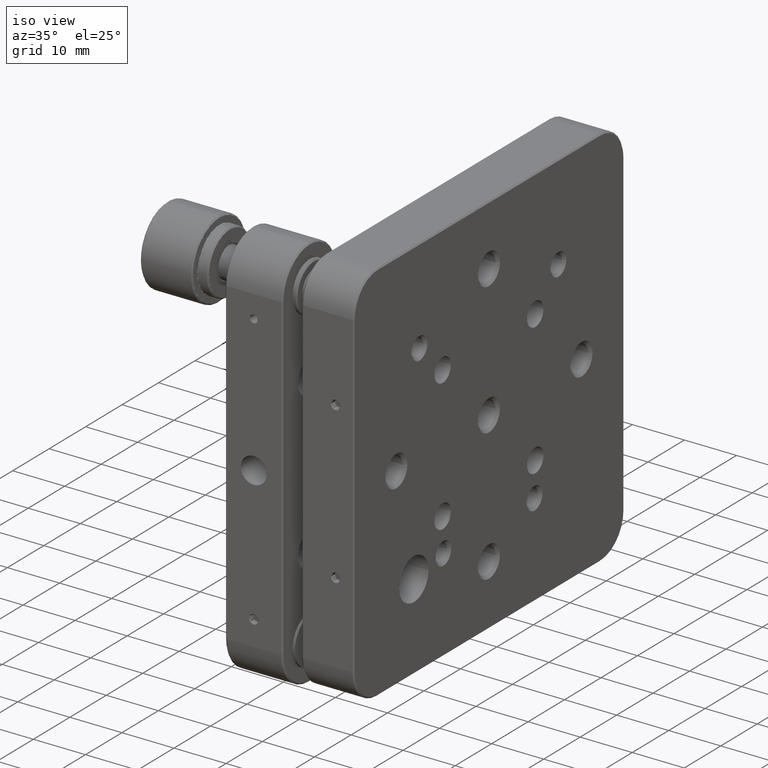
[diagram: clean part render]
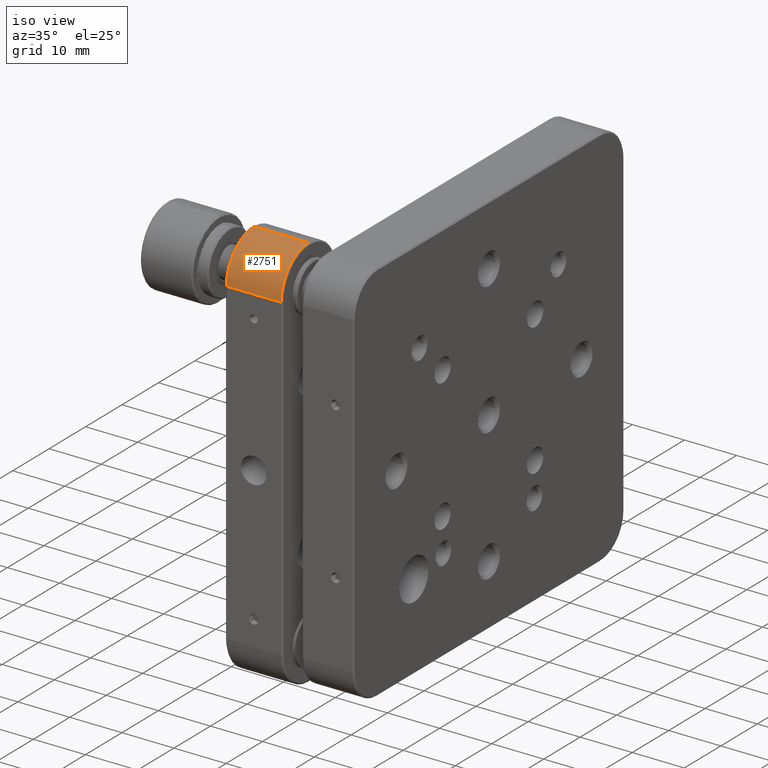
[diagram: same view with one face highlighted and labeled with its STEP entity id]
A machine part, iso view. The second image highlights one B-rep face of the part: STEP entity #2751.
In plain terms, the highlighted face is a freeform B-spline surface patch.
Its self-contained STEP definition (entity closure, byte-faithful):
#1660 = EDGE_CURVE ( 'NONE', #37291, #30365, #39007, .T. ) ;
#2751 = ADVANCED_FACE ( 'NONE', ( #37640 ), #30173, .T. ) ;
#2875 = CARTESIAN_POINT ( 'NONE',  ( 6.301200000000001467, -38.10000000000000142, 38.10000000000000142 ) ) ;
#3924 = ORIENTED_EDGE ( 'NONE', *, *, #1660, .T. ) ;
#4776 = LINE ( 'NONE', #30212, #7857 ) ;
#4958 = VECTOR ( 'NONE', #7834, 1000.000000000000000 ) ;
#6607 = CARTESIAN_POINT ( 'NONE',  ( -5.249999999999995559, -30.60000000000000853, 38.10000000000000142 ) ) ;
#7834 = DIRECTION ( 'NONE',  ( 1.000000000000000000, 0.000000000000000000, 0.000000000000000000 ) ) ;
#7857 = VECTOR ( 'NONE', #9081, 1000.000000000000000 ) ;
#8194 = DIRECTION ( 'NONE',  ( -1.000000000000000000, -0.000000000000000000, -0.000000000000000000 ) ) ;
#8422 = CARTESIAN_POINT ( 'NONE',  ( -6.301199999999997914, -23.10000000000000142, 30.60000000000000142 ) ) ;
#8650 = CARTESIAN_POINT ( 'NONE',  ( -6.301199999999997914, -30.60000000000000142, 23.10000000000000142 ) ) ;
#8887 = CARTESIAN_POINT ( 'NONE',  ( -6.301199999999997026, -38.10000000000000142, 23.10000000000000142 ) ) ;
#9081 = DIRECTION ( 'NONE',  ( 1.000000000000000000, 0.000000000000000000, 0.000000000000000000 ) ) ;
#9432 = ORIENTED_EDGE ( 'NONE', *, *, #36376, .T. ) ;
#10064 = CARTESIAN_POINT ( 'NONE',  ( -6.301199999999997914, -30.60000000000000142, 38.10000000000000142 ) ) ;
#10515 = CARTESIAN_POINT ( 'NONE',  ( 6.301200000000001467, -38.10000000000000142, 30.60000000000000142 ) ) ;
#10607 = AXIS2_PLACEMENT_3D ( 'NONE', #19455, #8194, #12263 ) ;
#12263 = DIRECTION ( 'NONE',  ( 0.000000000000000000, 4.625929269271482956E-16, -1.000000000000000000 ) ) ;
#13154 = CARTESIAN_POINT ( 'NONE',  ( 5.250000000000000000, -38.10000000000000142, 30.60000000000000142 ) ) ;
#14021 = EDGE_CURVE ( 'NONE', #23347, #21538, #4776, .T. ) ;
#14285 = CIRCLE ( 'NONE', #14392, 7.500000000000003553 ) ;
#14392 = AXIS2_PLACEMENT_3D ( 'NONE', #24134, #16453, #46149 ) ;
#15838 = CARTESIAN_POINT ( 'NONE',  ( 6.301200000000001467, -23.10000000000000142, 30.60000000000000142 ) ) ;
#16453 = DIRECTION ( 'NONE',  ( -1.000000000000000000, 0.000000000000000000, 0.000000000000000000 ) ) ;
#17025 = CARTESIAN_POINT ( 'NONE',  ( -6.301199999999997914, -23.10000000000000142, 30.60000000000000142 ) ) ;
#19455 = CARTESIAN_POINT ( 'NONE',  ( -5.249999999999995559, -30.60000000000000497, 30.60000000000000497 ) ) ;
#20848 = CARTESIAN_POINT ( 'NONE',  ( -6.301199999999997914, -38.10000000000000142, 30.60000000000000142 ) ) ;
#20930 = ORIENTED_EDGE ( 'NONE', *, *, #21459, .F. ) ;
#21459 = EDGE_CURVE ( 'NONE', #37291, #23347, #22883, .T. ) ;
#21538 = VERTEX_POINT ( 'NONE', #37425 ) ;
#22082 = EDGE_LOOP ( 'NONE', ( #3924, #9432, #37651, #20930 ) ) ;
#22883 = CIRCLE ( 'NONE', #10607, 7.500000000000003553 ) ;
#23347 = VERTEX_POINT ( 'NONE', #6607 ) ;
#23431 = CARTESIAN_POINT ( 'NONE',  ( -5.249999999999995559, -38.10000000000000142, 30.60000000000000142 ) ) ;
#24134 = CARTESIAN_POINT ( 'NONE',  ( 5.250000000000000000, -30.60000000000000497, 30.60000000000000497 ) ) ;
#24931 = CARTESIAN_POINT ( 'NONE',  ( 6.301200000000001467, -23.10000000000000142, 30.60000000000000142 ) ) ;
#27839 = CARTESIAN_POINT ( 'NONE',  ( 6.301200000000001467, -23.10000000000000142, 38.10000000000000142 ) ) ;
#28535 = CARTESIAN_POINT ( 'NONE',  ( -6.301199999999997026, -23.10000000000000142, 38.10000000000000142 ) ) ;
#30173 =( BOUNDED_SURFACE ( )  B_SPLINE_SURFACE ( 2, 1, ( 
 ( #15838, #8422 ),
 ( #41463, #30490 ),
 ( #45052, #8650 ),
 ( #41697, #8887 ),
 ( #10515, #20848 ),
 ( #2875, #42415 ),
 ( #31900, #10064 ),
 ( #27839, #28535 ),
 ( #24931, #17025 ) ),
 .UNSPECIFIED., .F., .F., .F. ) 
 B_SPLINE_SURFACE_WITH_KNOTS ( ( 3, 2, 2, 2, 3 ),
 ( 2, 2 ),
 ( 0.000000000000000000, 1.570796326794896558, 3.141592653589793116, 4.712388980384689674, 6.283185307179586232 ),
 ( 0.000000000000000000, 12.60239999999999938 ),
 .UNSPECIFIED. ) 
 GEOMETRIC_REPRESENTATION_ITEM ( )  RATIONAL_B_SPLINE_SURFACE ( (
 ( 1.000000000000000000, 1.000000000000000000),
 ( 0.7071067811865475727, 0.7071067811865475727),
 ( 1.000000000000000000, 1.000000000000000000),
 ( 0.7071067811865475727, 0.7071067811865475727),
 ( 1.000000000000000000, 1.000000000000000000),
 ( 0.7071067811865475727, 0.7071067811865475727),
 ( 1.000000000000000000, 1.000000000000000000),
 ( 0.7071067811865475727, 0.7071067811865475727),
 ( 1.000000000000000000, 1.000000000000000000) ) ) 
 REPRESENTATION_ITEM ( '' )  SURFACE ( )  );
#30212 = CARTESIAN_POINT ( 'NONE',  ( 8.673617379884035472E-16, -30.60000000000001563, 38.10000000000000142 ) ) ;
#30365 = VERTEX_POINT ( 'NONE', #13154 ) ;
#30490 = CARTESIAN_POINT ( 'NONE',  ( -6.301199999999997026, -23.10000000000000142, 23.10000000000000142 ) ) ;
#31900 = CARTESIAN_POINT ( 'NONE',  ( 6.301200000000001467, -30.60000000000000142, 38.10000000000000142 ) ) ;
#36376 = EDGE_CURVE ( 'NONE', #30365, #21538, #14285, .T. ) ;
#37291 = VERTEX_POINT ( 'NONE', #23431 ) ;
#37425 = CARTESIAN_POINT ( 'NONE',  ( 5.250000000000001776, -30.60000000000001563, 38.10000000000000853 ) ) ;
#37640 = FACE_OUTER_BOUND ( 'NONE', #22082, .T. ) ;
#37651 = ORIENTED_EDGE ( 'NONE', *, *, #14021, .F. ) ;
#39007 = LINE ( 'NONE', #40895, #4958 ) ;
#40895 = CARTESIAN_POINT ( 'NONE',  ( -6.301199999999997914, -38.10000000000000142, 30.60000000000000142 ) ) ;
#41463 = CARTESIAN_POINT ( 'NONE',  ( 6.301200000000001467, -23.10000000000000142, 23.10000000000000142 ) ) ;
#41697 = CARTESIAN_POINT ( 'NONE',  ( 6.301200000000001467, -38.10000000000000142, 23.10000000000000142 ) ) ;
#42415 = CARTESIAN_POINT ( 'NONE',  ( -6.301199999999997026, -38.10000000000000142, 38.10000000000000142 ) ) ;
#45052 = CARTESIAN_POINT ( 'NONE',  ( 6.301200000000001467, -30.60000000000000142, 23.10000000000000142 ) ) ;
#46149 = DIRECTION ( 'NONE',  ( 0.000000000000000000, 1.000000000000000000, -4.625929269271482956E-16 ) ) ;